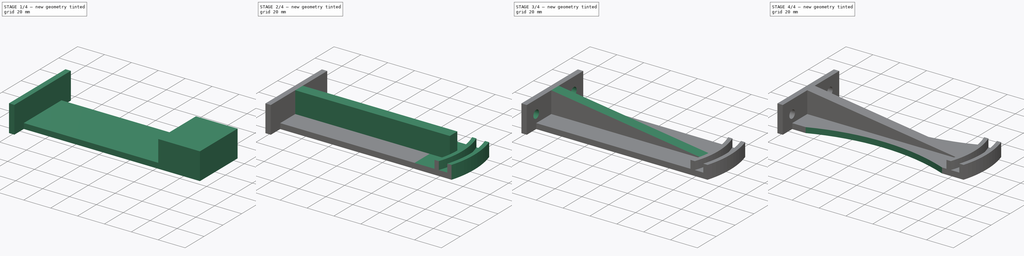
[diagram: build sequence overview — one tinted view per stage of 4, left to right]
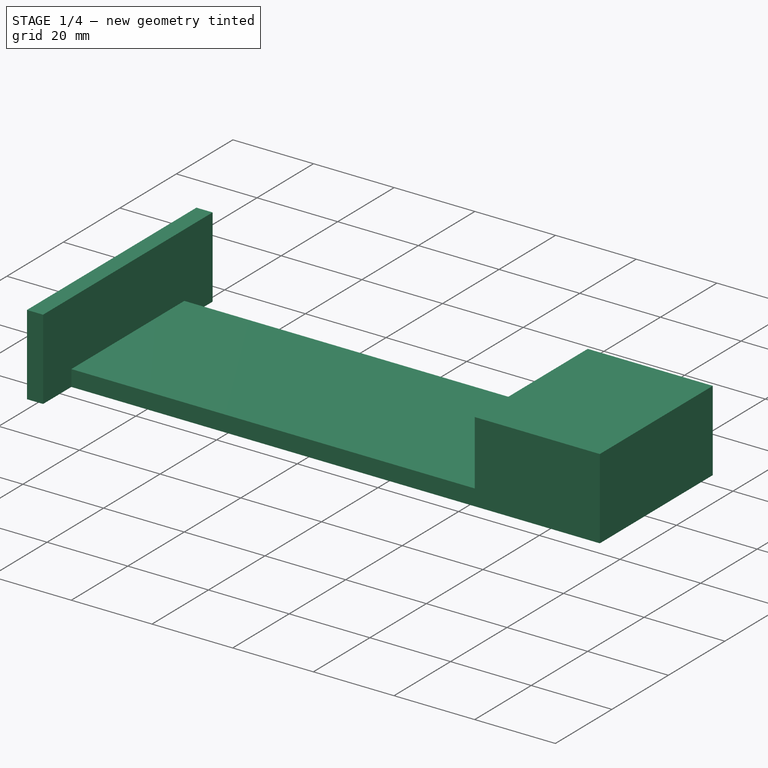
[diagram: stage 1 of 4 — iso view after this stage's code; geometry added in this stage tinted green]
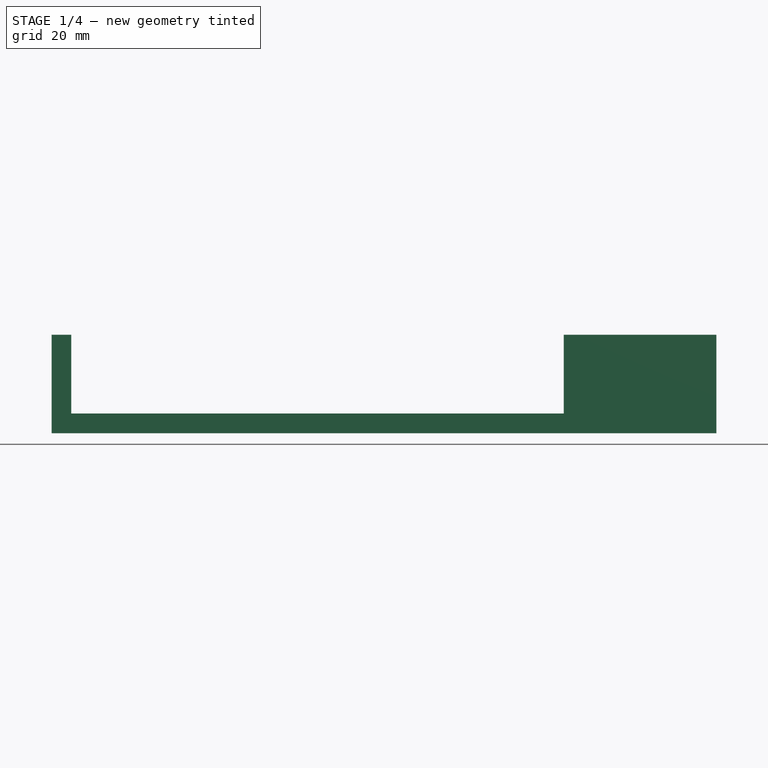
[diagram: stage 1 of 4 — front view after this stage's code; geometry added in this stage tinted green]
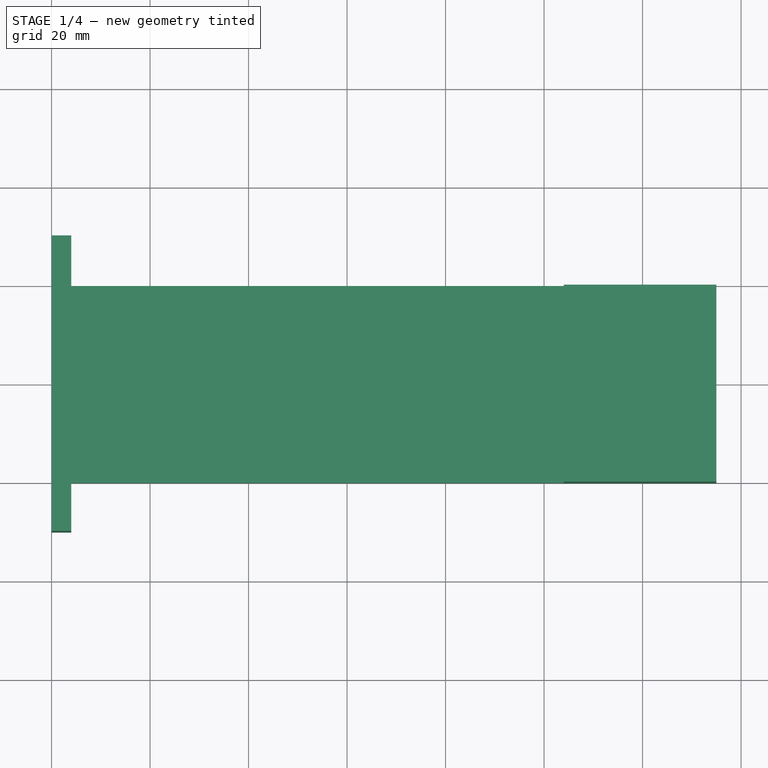
[diagram: stage 1 of 4 — top view after this stage's code; geometry added in this stage tinted green]
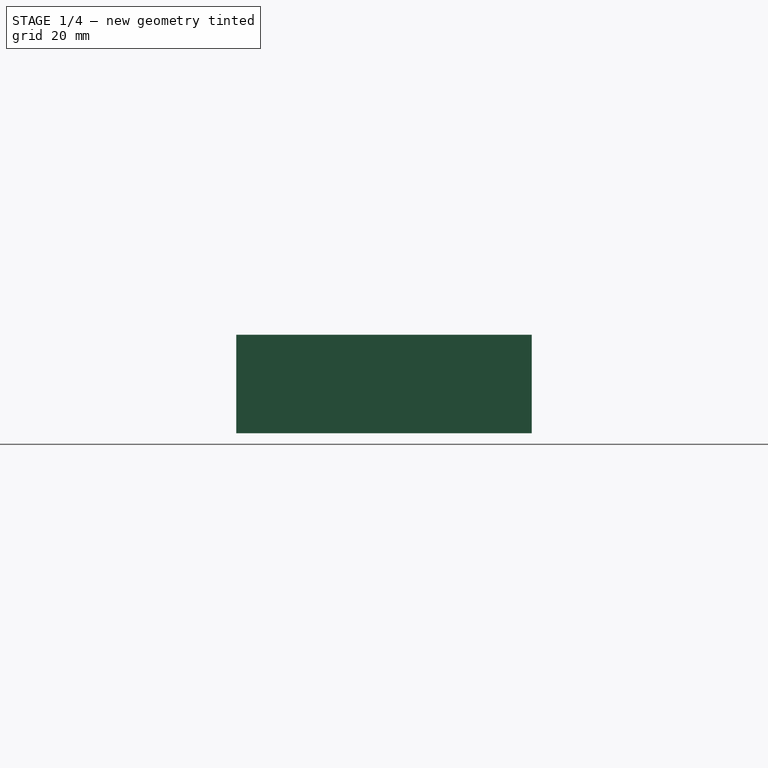
[diagram: stage 1 of 4 — right view after this stage's code; geometry added in this stage tinted green]
FCSTD DOCUMENT
Label: FilamentGuide
objects: Sketcher::SketchObject×8, PartDesign::Pocket×5, PartDesign::Pad×2, PartDesign::Mirrored×2, PartDesign::Groove×1, Part::Feature×1
note: 27 computed .brp shape members not serialized (recipe doc carries the construction recipe); baked Part::Feature solids carry a one-line shape summary decoded from their .brp

FEATURE [Sketcher::SketchObject] Sketch
  sketch-geometry (8):
    g0: LineSegment StartX=0 StartY=30 StartZ=0 EndX=4 EndY=30 EndZ=0
    g1: LineSegment StartX=135 StartY=20 StartZ=0 EndX=135 EndY=-20 EndZ=0
    g2: LineSegment StartX=4 StartY=-30 StartZ=0 EndX=0 EndY=-30 EndZ=0
    g3: LineSegment StartX=0 StartY=-30 StartZ=0 EndX=0 EndY=30 EndZ=0
    g4: LineSegment StartX=4 StartY=30 StartZ=0 EndX=4 EndY=20 EndZ=0
    g5: LineSegment StartX=4 StartY=20 StartZ=0 EndX=135 EndY=20 EndZ=0
    g6: LineSegment StartX=4 StartY=-30 StartZ=0 EndX=4 EndY=-20 EndZ=0
    g7: LineSegment StartX=4 StartY=-20 StartZ=0 EndX=135 EndY=-20 EndZ=0
  constraints (23):
    c: Coincident(g2,g3)
    c: Coincident(g3,g0)
    c: Horizontal(g0)
    c: Horizontal(g2)
    c: Vertical(g1)
    c: Vertical(g3)
    c: Vertical(g4)
    c: Coincident(g4,g5)
    c: Horizontal(g5)
    c: Coincident(g6,g7)
    c: Horizontal(g7)
    c: Coincident(g1,g7)
    c: Coincident(g6,g2)
    c: Coincident(g0,g4)
    c: Coincident(g1,g5)
    c: Tangent(g6,g4)
    c: Symmetric(g0,g2,g-1)
    c: DistanceY(g3) = 60
    c: DistanceY(g1) = -40
    c: DistanceX(g0) = 4
    c: PointOnObject(g0,g-2)
    c: Equal(g6,g4)
    c: DistanceX(g0,g1) = 135
FEATURE [PartDesign::Pad] Pad
  Length = 20
  Length2 = 100
  Sketch = -> Sketch
  Type = 0
FEATURE [Sketcher::SketchObject] Sketch001
  ExternalGeometry = -> [Pad]
  Placement = pos=(0,0,20) rot=(0,0,1;0rad)
  Support = -> Pad [Face10]
  sketch-geometry (4):
    g0: LineSegment StartX=4 StartY=20 StartZ=0 EndX=104 EndY=20 EndZ=0
    g1: LineSegment StartX=104 StartY=-20 StartZ=0 EndX=4 EndY=-20 EndZ=0
    g2: LineSegment StartX=4 StartY=-20 StartZ=0 EndX=4 EndY=20 EndZ=0
    g3: LineSegment StartX=104 StartY=-20 StartZ=0 EndX=104 EndY=20 EndZ=0
  constraints (11):
    c: Coincident(g1,g2)
    c: Coincident(g2,g0)
    c: Horizontal(g0)
    c: Horizontal(g1)
    c: Symmetric(g0,g1,g-1)
    c: Coincident(g0,g-3)
    c: DistanceX(g1) = -100
    c: Equal(g0,g1)
    c: Coincident(g3,g1)
    c: Vertical(g3)
    c: Coincident(g3,g0)
FEATURE [PartDesign::Pocket] Pocket
  Length = 16
  Sketch = -> Sketch001
  Type = 0
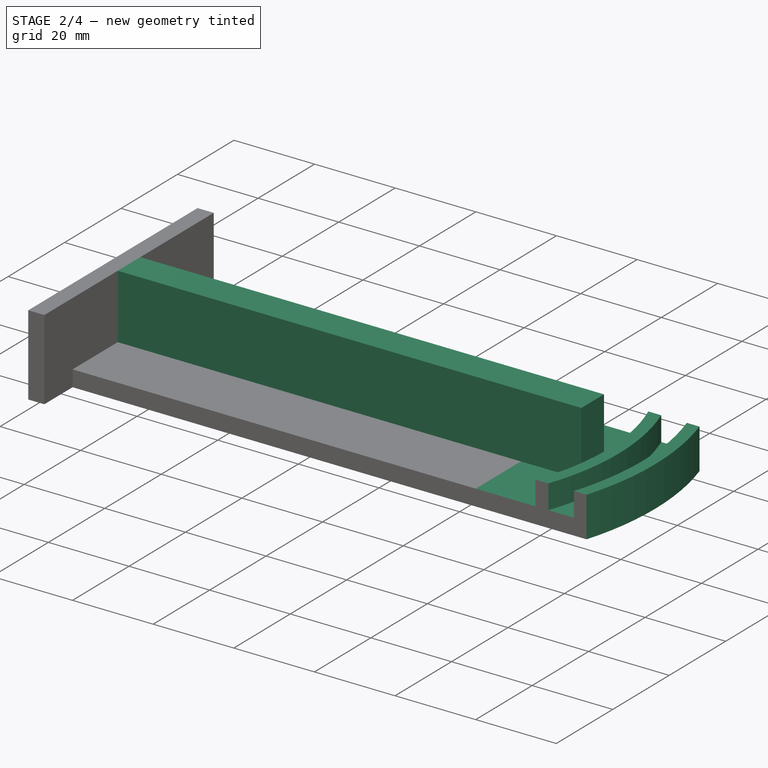
[diagram: stage 2 of 4 — iso view after this stage's code; geometry added in this stage tinted green]
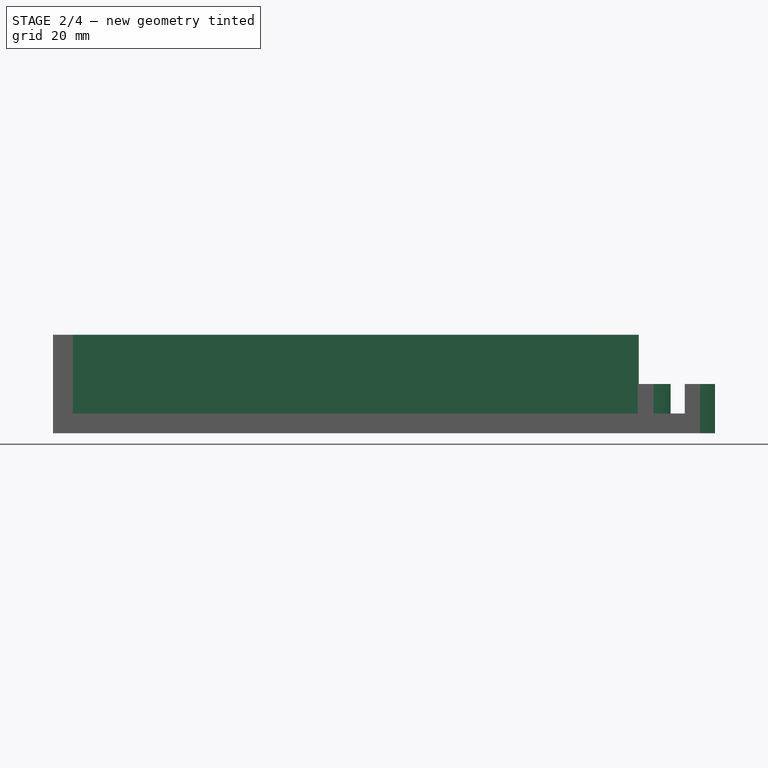
[diagram: stage 2 of 4 — front view after this stage's code; geometry added in this stage tinted green]
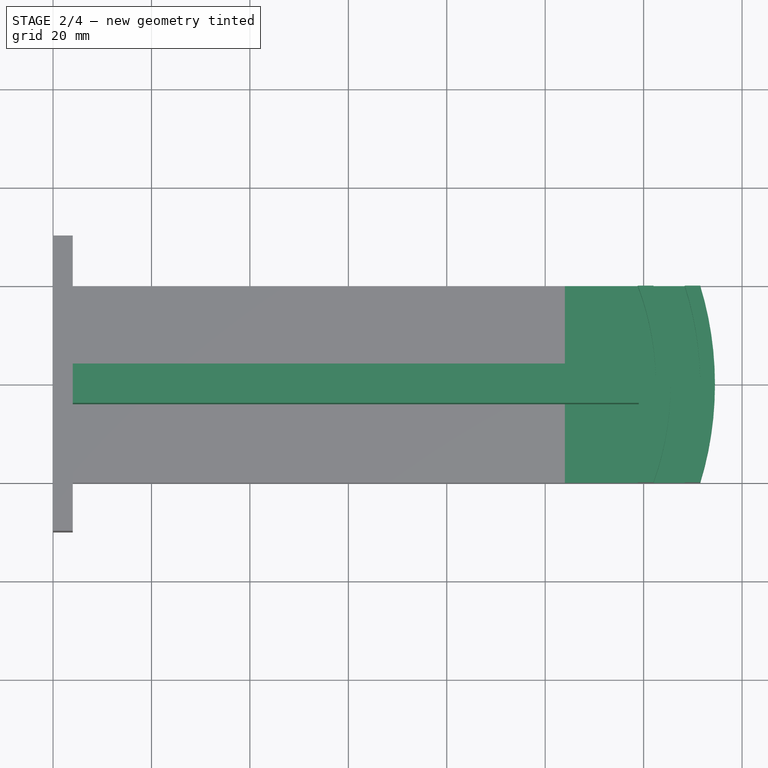
[diagram: stage 2 of 4 — top view after this stage's code; geometry added in this stage tinted green]
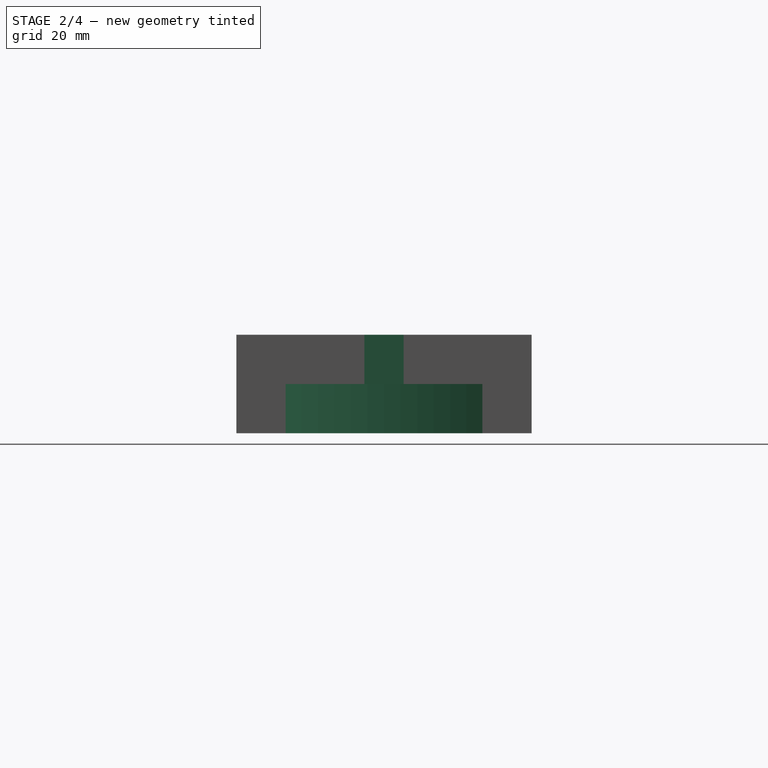
[diagram: stage 2 of 4 — right view after this stage's code; geometry added in this stage tinted green]
FEATURE [Sketcher::SketchObject] Sketch002
  ExternalGeometry = -> [Pocket]
  Placement = pos=(0,-20,0) rot=(1,0,0;1.5708rad)
  Support = -> Pocket [Face6]
  sketch-geometry (4):
    g0: LineSegment StartX=103 StartY=21 StartZ=0 EndX=136 EndY=21 EndZ=0
    g1: LineSegment StartX=136 StartY=21 StartZ=0 EndX=136 EndY=12 EndZ=0
    g2: LineSegment StartX=136 StartY=12 StartZ=0 EndX=103 EndY=12 EndZ=0
    g3: LineSegment StartX=103 StartY=12 StartZ=0 EndX=103 EndY=21 EndZ=0
  constraints (12):
    c: Coincident(g0,g1)
    c: Coincident(g1,g2)
    c: Coincident(g2,g3)
    c: Coincident(g3,g0)
    c: Horizontal(g0)
    c: Horizontal(g2)
    c: Vertical(g1)
    c: Vertical(g3)
    c: DistanceY(g-3,g0) = 1
    c: DistanceX(g0,g-3) = 1
    c: DistanceX(g-4,g0) = 1
    c: DistanceY(g1,g-4) = -12
FEATURE [PartDesign::Pocket] Pocket001
  Length = 20
  Sketch = -> Sketch002
  Type = 0
FEATURE [Sketcher::SketchObject] Sketch003
  ExternalGeometry = -> [Pocket001]
  Placement = pos=(0,0,0) rot=(1,0,0;1.5708rad)
  Support = -> Pocket001 [Face16]
  sketch-geometry (13):
    g0: LineSegment StartX=102.49 StartY=4 StartZ=0 EndX=122.49 EndY=4 EndZ=0
    g1: LineSegment StartX=137.933 StartY=0 StartZ=0 EndX=137.933 EndY=21 EndZ=0
    g2: LineSegment StartX=137.933 StartY=21 StartZ=0 EndX=102.49 EndY=21 EndZ=0
    g3: LineSegment StartX=102.49 StartY=21 StartZ=0 EndX=102.49 EndY=4 EndZ=0
    g4: LineSegment StartX=134.49 StartY=0 StartZ=0 EndX=134.49 EndY=10 EndZ=0
    g5: LineSegment StartX=134.49 StartY=10 StartZ=0 EndX=131.49 EndY=10 EndZ=0
    g6: LineSegment StartX=122.49 StartY=10 StartZ=0 EndX=122.49 EndY=4 EndZ=0
    g7: LineSegment StartX=131.49 StartY=10 StartZ=0 EndX=131.49 EndY=4 EndZ=0
    g8: LineSegment StartX=131.49 StartY=4 StartZ=0 EndX=125.49 EndY=4 EndZ=0
    g9: LineSegment StartX=125.49 StartY=4 StartZ=0 EndX=125.49 EndY=10 EndZ=0
    g10: LineSegment StartX=134.49 StartY=0 StartZ=0 EndX=137.933 EndY=0 EndZ=0
    g11: LineSegment StartX=125.49 StartY=10 StartZ=0 EndX=122.49 EndY=10 EndZ=0
    g12: LineSegment [constr] StartX=66.323 StartY=21 StartZ=0 EndX=66.323 EndY=0 EndZ=0
  constraints (39):
    c: Coincident(g10,g1)
    c: Coincident(g1,g2)
    c: Coincident(g2,g3)
    c: Coincident(g3,g0)
    c: Horizontal(g0)
    c: Horizontal(g2)
    c: Vertical(g1)
    c: Vertical(g3)
    c: Coincident(g4,g5)
    c: Coincident(g11,g6)
    c: Horizontal(g5)
    c: Vertical(g4)
    c: Vertical(g6)
    c: Coincident(g7,g8)
    c: Coincident(g8,g9)
    c: Horizontal(g8)
    c: Vertical(g7)
    c: Vertical(g9)
    c: Coincident(g0,g6)
    c: Coincident(g10,g4)
    c: Tangent(g5,g11)
    c: Coincident(g9,g11)
    c: Coincident(g7,g5)
    c: Equal(g5,g11)
    c: DistanceX(g5) = -3
    c: DistanceX(g8) = -6
    c: PointOnObject(g12,g-3)
    c: Vertical(g12)
    c: Equal(g12,g1)
    c: Horizontal(g10)
    c: DistanceX(g10) = 3.44306
    c: PointOnObject(g4,g-3)
    c: PointOnObject(g0,g-4)
    c: PointOnObject(g8,g-4)
    c: DistanceY(g4,g1) = -10
    c: DistanceY(g-5,g1) = 1
    c: DistanceX(g0) = 20
    c: DistanceX(g4,g12) = -68.167
    c: DistanceX(g-1,g4) = 134.49
FEATURE [PartDesign::Groove] Groove
  Angle = 60
  Axis = (0,0,-21)
  Base = (66.323,0,21)
  Midplane = true
  ReferenceAxis = -> Sketch003 [Axis0]
  Sketch = -> Sketch003
FEATURE [Sketcher::SketchObject] Sketch004
  ExternalGeometry = -> [Groove]
  Placement = pos=(0,0,20) rot=(0,0,1;0rad)
  Support = -> Groove [Face5]
  sketch-geometry (4):
    g0: LineSegment StartX=4 StartY=-4 StartZ=0 EndX=119 EndY=-4 EndZ=0
    g1: LineSegment StartX=119 StartY=-4 StartZ=0 EndX=119 EndY=4 EndZ=0
    g2: LineSegment StartX=119 StartY=4 StartZ=0 EndX=4 EndY=4 EndZ=0
    g3: LineSegment StartX=4 StartY=4 StartZ=0 EndX=4 EndY=-4 EndZ=0
  constraints (12):
    c: Coincident(g0,g1)
    c: Coincident(g1,g2)
    c: Coincident(g2,g3)
    c: Coincident(g3,g0)
    c: Horizontal(g0)
    c: Horizontal(g2)
    c: Vertical(g1)
    c: Vertical(g3)
    c: Symmetric(g0,g2,g-1)
    c: PointOnObject(g0,g-3)
    c: DistanceY(g1) = 8
    c: DistanceX(g0) = 115
FEATURE [PartDesign::Pad] Pad001
  Length = 10
  Length2 = 100
  Reversed = true
  Sketch = -> Sketch004
  Type = 1
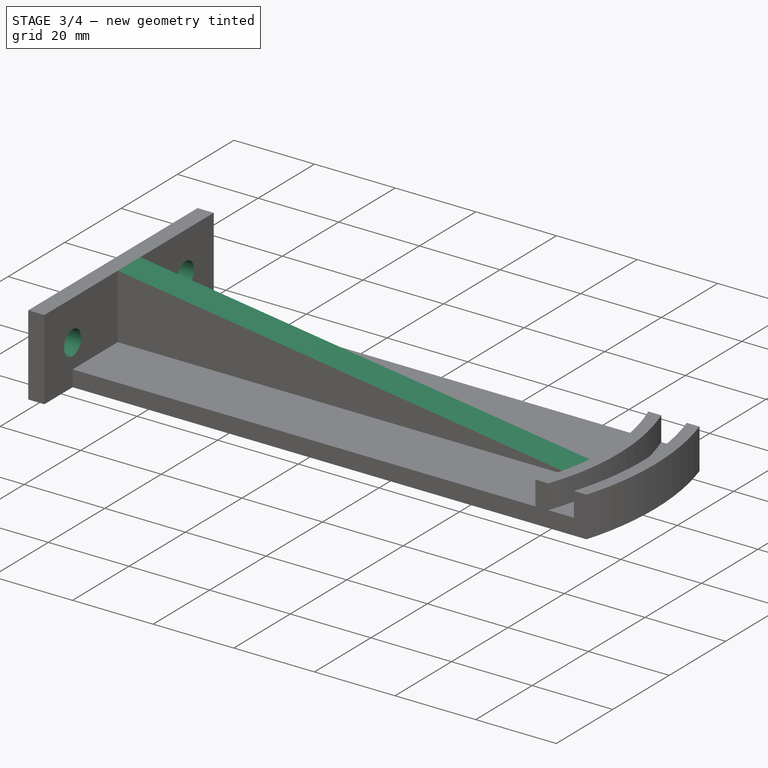
[diagram: stage 3 of 4 — iso view after this stage's code; geometry added in this stage tinted green]
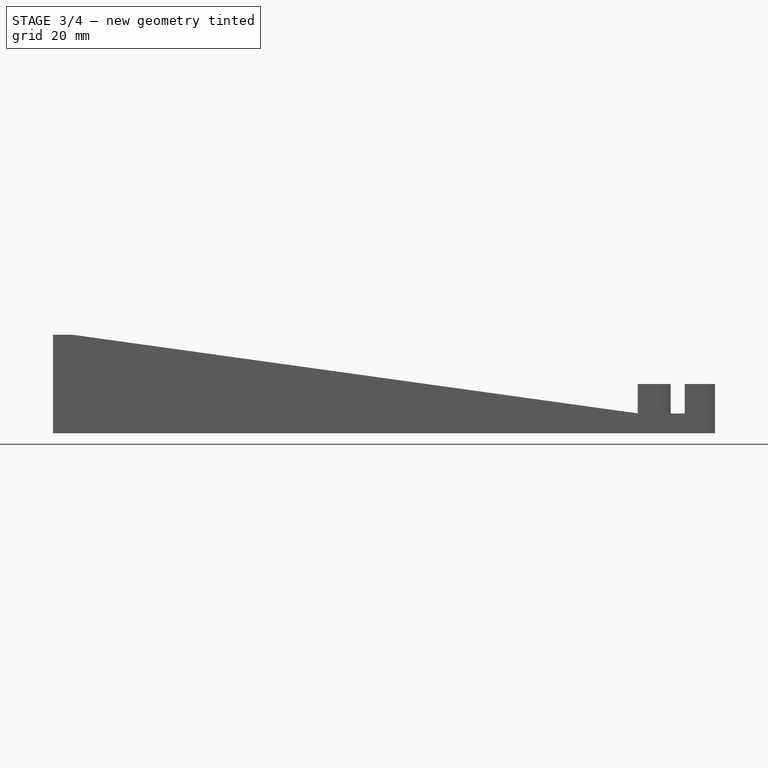
[diagram: stage 3 of 4 — front view after this stage's code; geometry added in this stage tinted green]
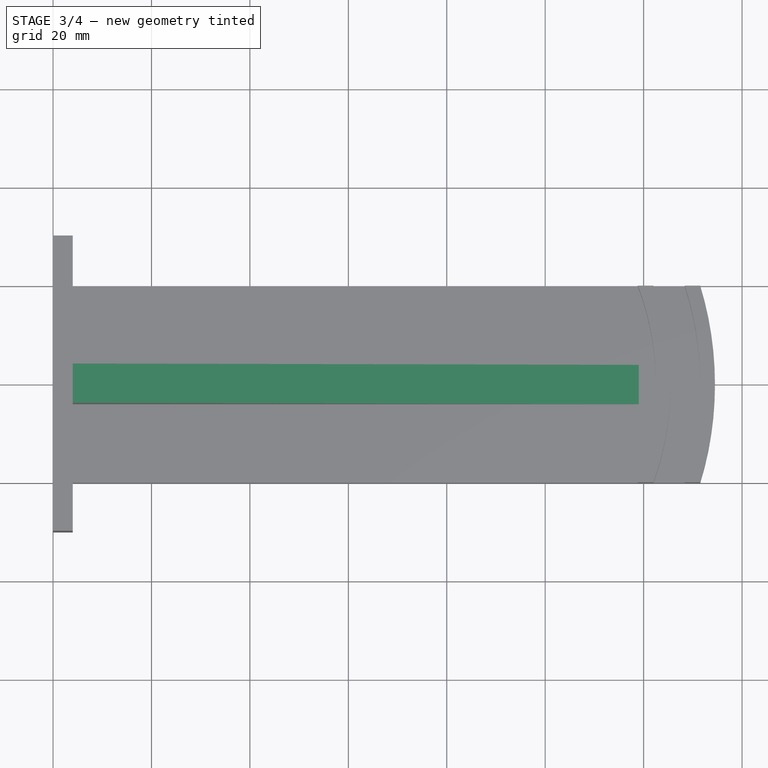
[diagram: stage 3 of 4 — top view after this stage's code; geometry added in this stage tinted green]
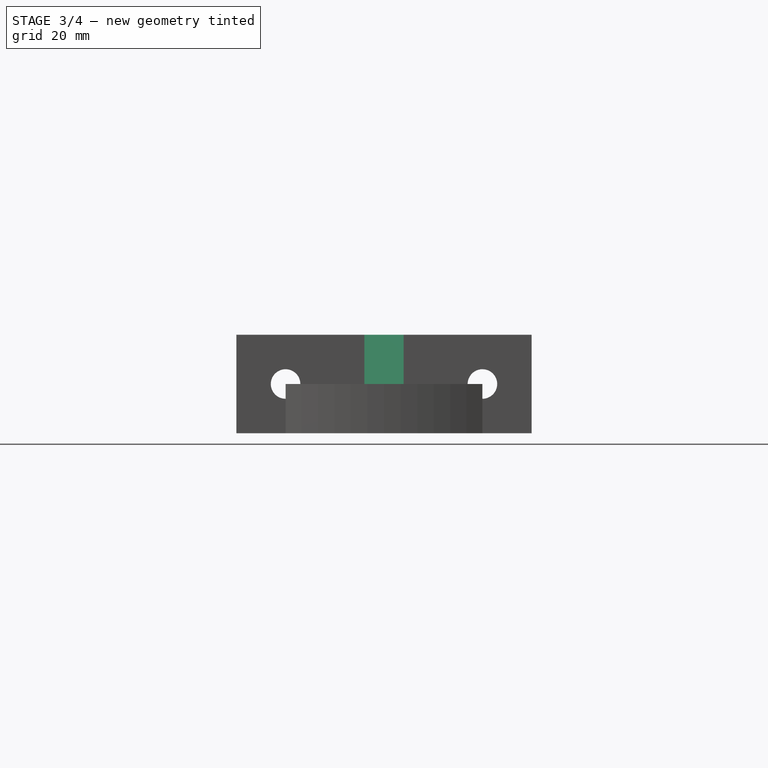
[diagram: stage 3 of 4 — right view after this stage's code; geometry added in this stage tinted green]
FEATURE [Sketcher::SketchObject] Sketch005
  ExternalGeometry = -> [Pad001]
  Placement = pos=(0,-4,0) rot=(1,0,0;1.5708rad)
  Support = -> Pad001 [Face23]
  sketch-geometry (4):
    g0: LineSegment StartX=4 StartY=21 StartZ=0 EndX=119 EndY=21 EndZ=0
    g1: LineSegment StartX=119 StartY=21 StartZ=0 EndX=119 EndY=4 EndZ=0
    g2: LineSegment StartX=4 StartY=20 StartZ=0 EndX=4 EndY=21 EndZ=0
    g3: LineSegment StartX=4 StartY=20 StartZ=0 EndX=119 EndY=4 EndZ=0
  constraints (10):
    c: Coincident(g0,g1)
    c: Coincident(g2,g0)
    c: Horizontal(g0)
    c: Vertical(g1)
    c: Vertical(g2)
    c: Coincident(g3,g1)
    c: Coincident(g2,g3)
    c: Coincident(g1,g-4)
    c: Coincident(g2,g-3)
    c: DistanceY(g2) = 1
FEATURE [PartDesign::Pocket] Pocket002
  Length = 5
  Sketch = -> Sketch005
  Type = 2
FEATURE [Sketcher::SketchObject] Sketch006
  ExternalGeometry = -> [Pocket002]
  Placement = pos=(4,0,0) rot=(0.57735,0.57735,0.57735;2.0944rad)
  Support = -> Pocket002 [Face2]
  sketch-geometry (1):
    g0: Circle CenterX=-20 CenterY=10 CenterZ=0 NormalX=0 NormalY=0 NormalZ=1 Radius=3
  constraints (3):
    c: Radius(g0) = 3
    c: DistanceY(g-3,g0) = 10
    c: DistanceX(g0,g-3) = -10
FEATURE [PartDesign::Pocket] Pocket003
  Length = 5
  Sketch = -> Sketch006
  Type = 1
FEATURE [PartDesign::Mirrored] Mirrored
  Originals = -> [Pocket003]
  StdMirrorPlane = XZ
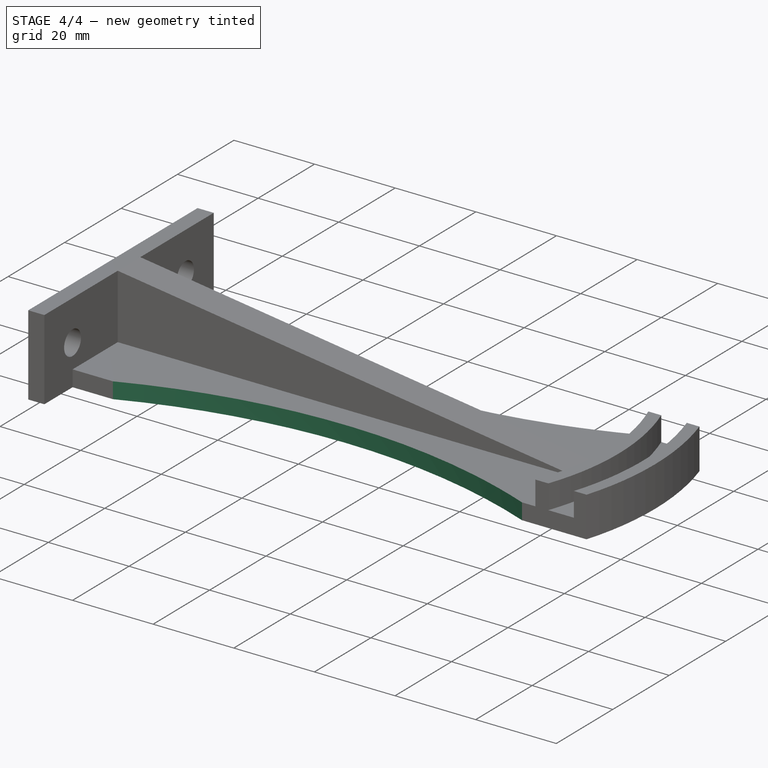
[diagram: stage 4 of 4 — iso view after this stage's code; geometry added in this stage tinted green]
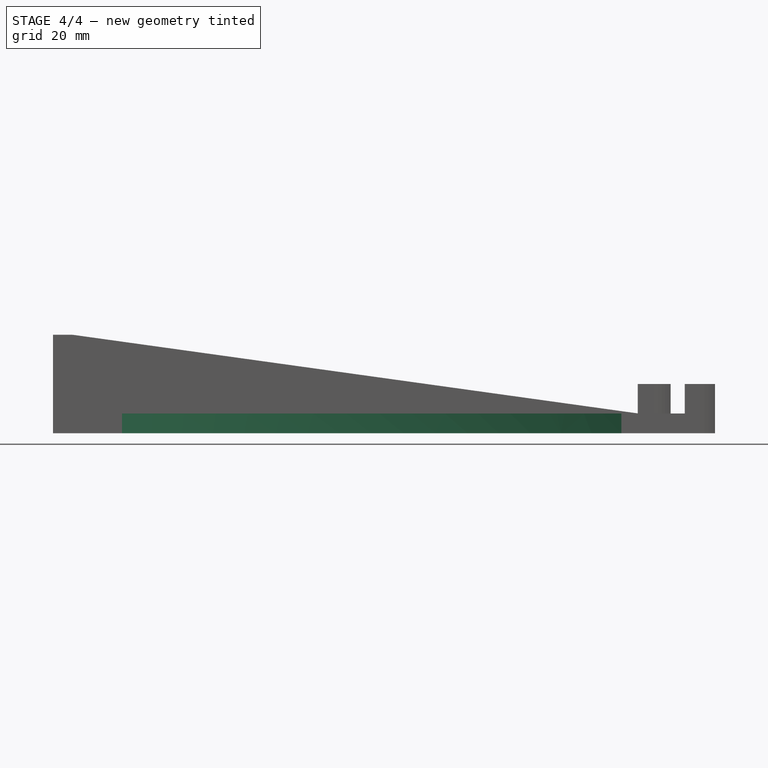
[diagram: stage 4 of 4 — front view after this stage's code; geometry added in this stage tinted green]
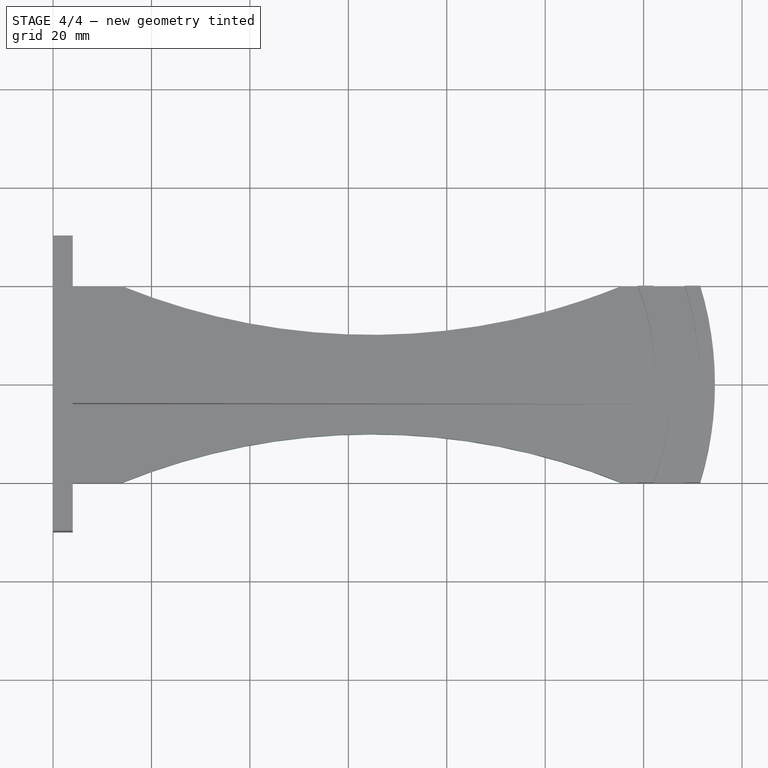
[diagram: stage 4 of 4 — top view after this stage's code; geometry added in this stage tinted green]
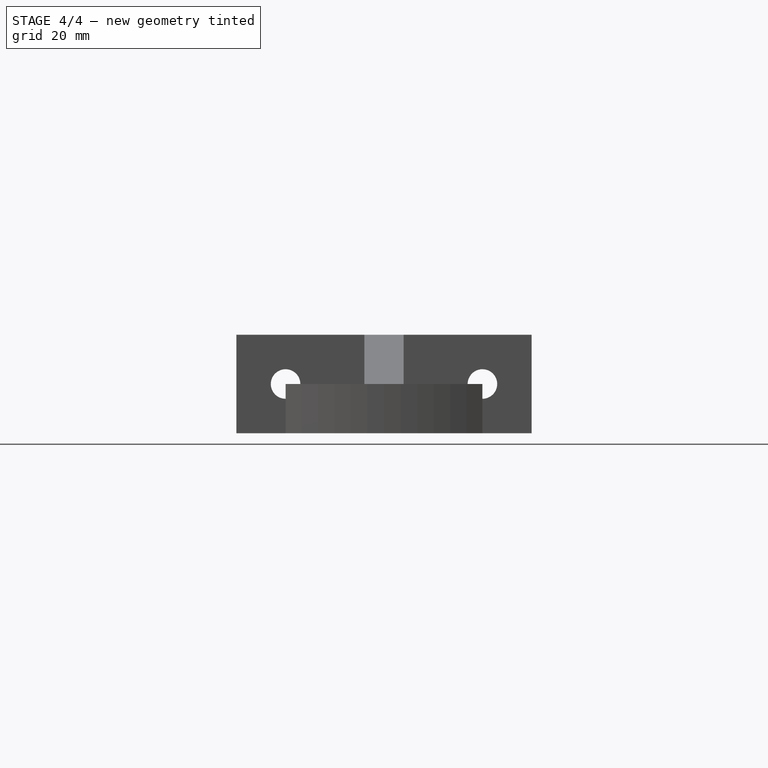
[diagram: stage 4 of 4 — right view after this stage's code; geometry added in this stage tinted green]
FEATURE [Sketcher::SketchObject] Sketch007
  ExternalGeometry = -> [Mirrored]
  Placement = pos=(0,0,4) rot=(0,0,1;0rad)
  Support = -> Mirrored [Face22]
  sketch-geometry (4):
    g0: ArcOfCircle CenterX=64.745 CenterY=-145.154 CenterZ=0 NormalX=0 NormalY=0 NormalZ=1 Radius=135.05 StartAngle=1.18559 EndAngle=1.956
    g1: LineSegment StartX=115.49 StartY=-20 StartZ=0 EndX=115.49 EndY=-22 EndZ=0
    g2: LineSegment StartX=115.49 StartY=-22 StartZ=0 EndX=14 EndY=-22 EndZ=0
    g3: LineSegment StartX=14 StartY=-22 StartZ=0 EndX=14 EndY=-20 EndZ=0
  constraints (13):
    c: Coincident(g1,g2)
    c: Coincident(g2,g3)
    c: Horizontal(g2)
    c: Vertical(g1)
    c: Vertical(g3)
    c: Coincident(g0,g3)
    c: Coincident(g0,g1)
    c: PointOnObject(g0,g-3)
    c: PointOnObject(g0,g-3)
    c: Radius(g0) = 135.05
    c: DistanceX(g0,g-3) = -10
    c: DistanceX(g0,g-3) = 16
    c: DistanceY(g1) = -2
FEATURE [PartDesign::Pocket] Pocket004
  Length = 5
  Sketch = -> Sketch007
  Type = 1
FEATURE [PartDesign::Mirrored] Mirrored001
  Originals = -> [Pocket004]
  StdMirrorPlane = XZ
FEATURE [Part::Feature] Mirrored001001  label="Refine"
  shape: bbox 134.5 x 60 x 20 mm, 26 faces (baked)
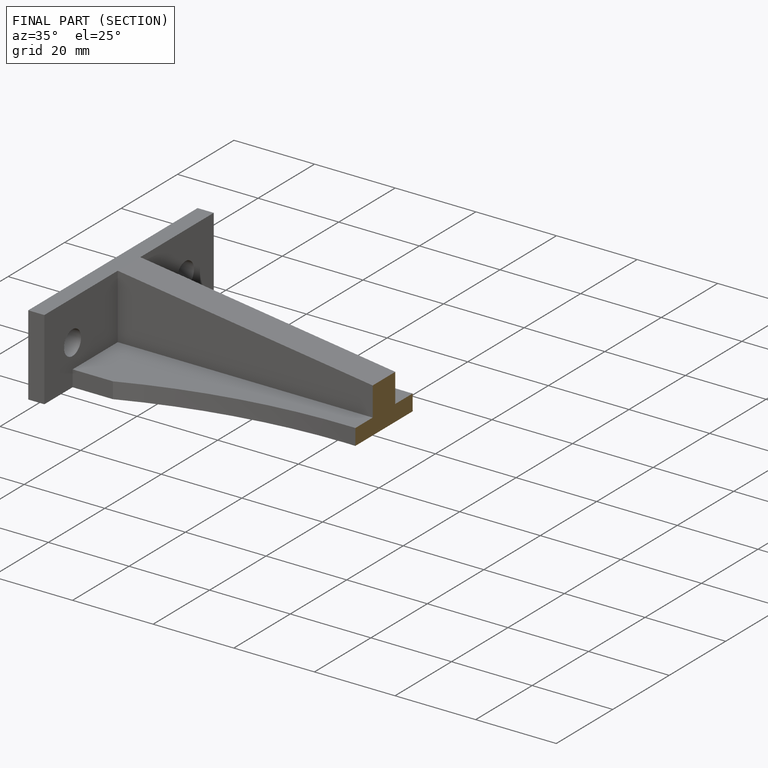
[diagram: finished part — half-section view (interior)]
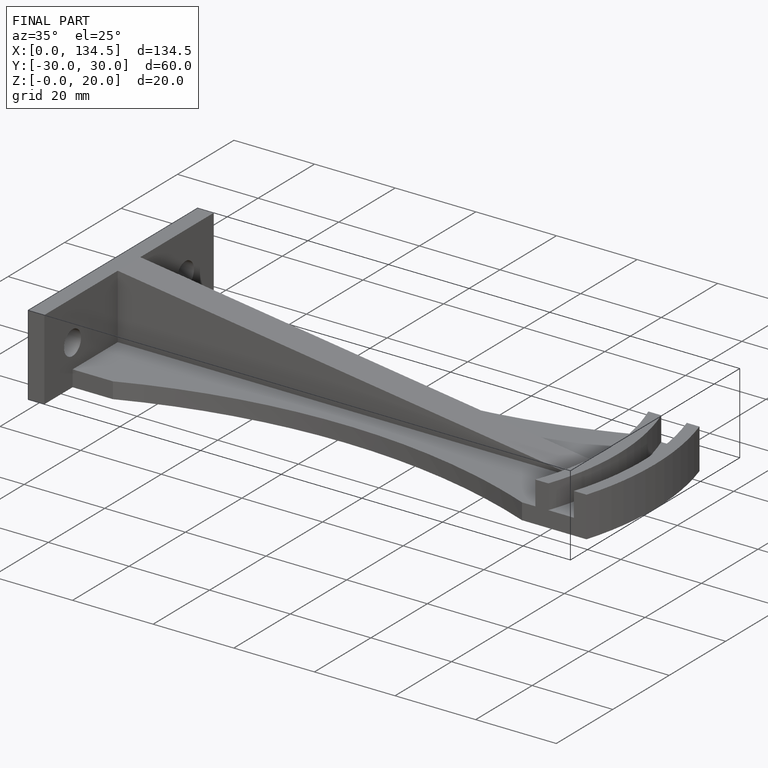
[diagram: finished part — iso view with bounding-box wireframe]
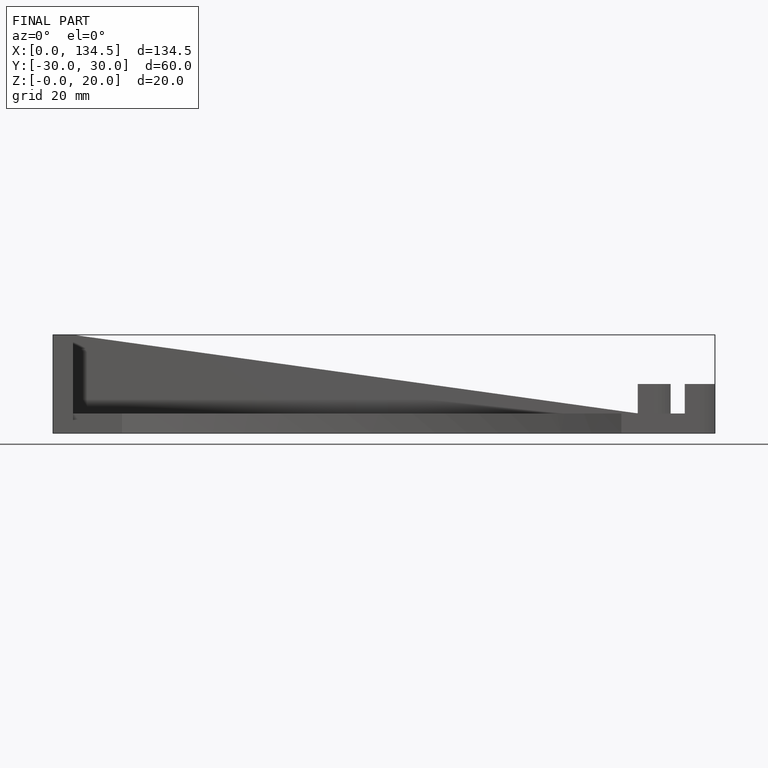
[diagram: finished part — front view with bounding-box wireframe]
